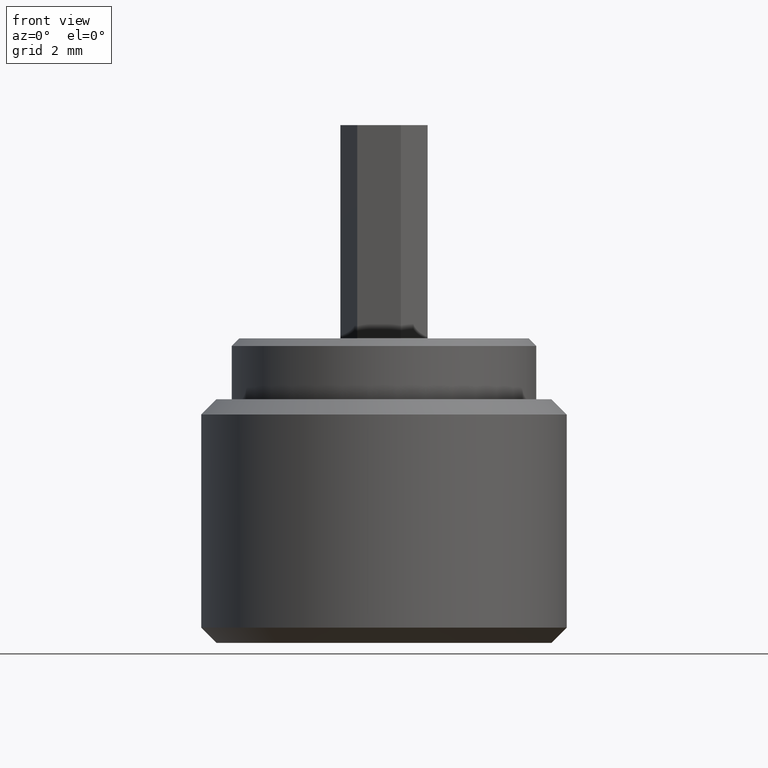
[diagram: clean part render]
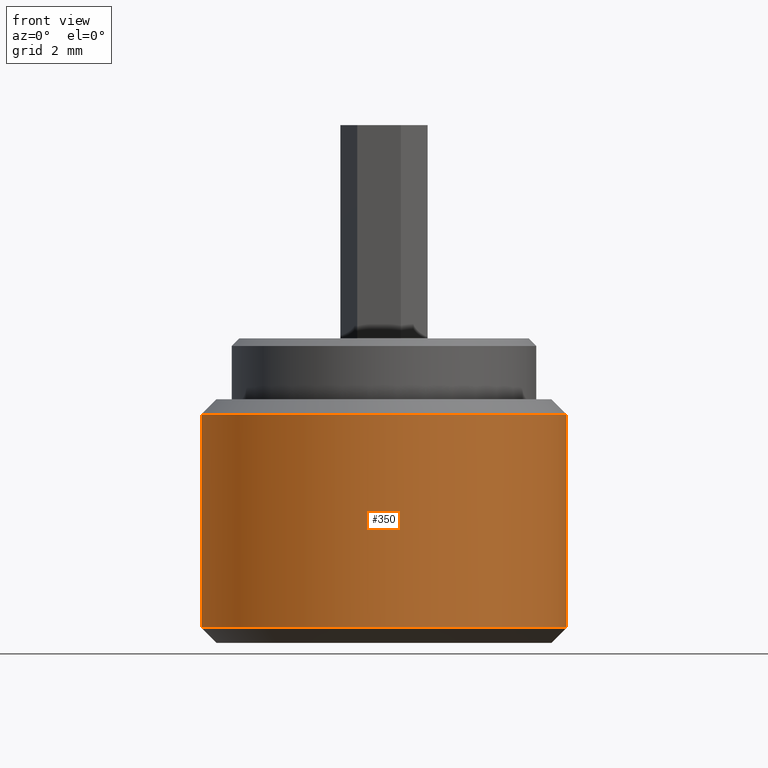
[diagram: same view with one face highlighted and labeled with its STEP entity id]
A machine part, front view. The second image highlights one B-rep face of the part: STEP entity #350.
In plain terms, the highlighted cylindrical surface (partial cylindrical patch) has radius 6 mm, axis along (-0, -0, -1).
Its self-contained STEP definition (entity closure, byte-faithful):
#8 = VERTEX_POINT ( 'NONE', #840 ) ;
#35 = DIRECTION ( 'NONE',  ( 1.000000000000000000, 0.000000000000000000, 0.000000000000000000 ) ) ;
#39 = DIRECTION ( 'NONE',  ( -1.000000000000000000, 0.000000000000000000, 0.000000000000000000 ) ) ;
#43 = VECTOR ( 'NONE', #779, 1000.000000000000000 ) ;
#103 = DIRECTION ( 'NONE',  ( 1.000000000000000000, 0.000000000000000000, 0.000000000000000000 ) ) ;
#114 = CARTESIAN_POINT ( 'NONE',  ( 6.000000000000000888, 7.347880794884120722E-16, 10.00000000000000000 ) ) ;
#213 = EDGE_CURVE ( 'NONE', #8, #946, #341, .T. ) ;
#248 = CARTESIAN_POINT ( 'NONE',  ( 6.000000000000000888, 7.347880794884120722E-16, 0.4999999999999987232 ) ) ;
#255 = LINE ( 'NONE', #114, #43 ) ;
#278 = CARTESIAN_POINT ( 'NONE',  ( -6.000000000000000888, 0.000000000000000000, 0.4999999999999987232 ) ) ;
#316 = EDGE_CURVE ( 'NONE', #8, #797, #255, .T. ) ;
#328 = LINE ( 'NONE', #773, #610 ) ;
#329 = EDGE_CURVE ( 'NONE', #842, #797, #940, .T. ) ;
#341 = CIRCLE ( 'NONE', #755, 6.000000000000000888 ) ;
#350 = ADVANCED_FACE ( 'NONE', ( #493 ), #796, .T. ) ;
#390 = AXIS2_PLACEMENT_3D ( 'NONE', #420, #718, #39 ) ;
#420 = CARTESIAN_POINT ( 'NONE',  ( 0.000000000000000000, 0.000000000000000000, 10.00000000000000000 ) ) ;
#488 = ORIENTED_EDGE ( 'NONE', *, *, #316, .F. ) ;
#493 = FACE_OUTER_BOUND ( 'NONE', #570, .T. ) ;
#530 = ORIENTED_EDGE ( 'NONE', *, *, #566, .T. ) ;
#553 = DIRECTION ( 'NONE',  ( -0.000000000000000000, -0.000000000000000000, -1.000000000000000000 ) ) ;
#558 = CARTESIAN_POINT ( 'NONE',  ( 0.000000000000000000, 0.000000000000000000, 0.4999999999999987232 ) ) ;
#566 = EDGE_CURVE ( 'NONE', #946, #842, #328, .T. ) ;
#570 = EDGE_LOOP ( 'NONE', ( #488, #786, #530, #639 ) ) ;
#607 = CARTESIAN_POINT ( 'NONE',  ( -6.000000000000000888, 0.000000000000000000, 7.500000000000000000 ) ) ;
#610 = VECTOR ( 'NONE', #703, 1000.000000000000000 ) ;
#639 = ORIENTED_EDGE ( 'NONE', *, *, #329, .T. ) ;
#703 = DIRECTION ( 'NONE',  ( -0.000000000000000000, -0.000000000000000000, -1.000000000000000000 ) ) ;
#718 = DIRECTION ( 'NONE',  ( -0.000000000000000000, -0.000000000000000000, -1.000000000000000000 ) ) ;
#755 = AXIS2_PLACEMENT_3D ( 'NONE', #790, #553, #103 ) ;
#773 = CARTESIAN_POINT ( 'NONE',  ( -6.000000000000000888, 0.000000000000000000, 10.00000000000000000 ) ) ;
#779 = DIRECTION ( 'NONE',  ( -0.000000000000000000, -0.000000000000000000, -1.000000000000000000 ) ) ;
#786 = ORIENTED_EDGE ( 'NONE', *, *, #213, .T. ) ;
#790 = CARTESIAN_POINT ( 'NONE',  ( 0.000000000000000000, 0.000000000000000000, 7.500000000000000000 ) ) ;
#796 = CYLINDRICAL_SURFACE ( 'NONE', #390, 6.000000000000000888 ) ;
#797 = VERTEX_POINT ( 'NONE', #248 ) ;
#840 = CARTESIAN_POINT ( 'NONE',  ( 6.000000000000000888, 7.347880794884120722E-16, 7.500000000000000000 ) ) ;
#842 = VERTEX_POINT ( 'NONE', #278 ) ;
#888 = AXIS2_PLACEMENT_3D ( 'NONE', #558, #955, #35 ) ;
#940 = CIRCLE ( 'NONE', #888, 6.000000000000000888 ) ;
#946 = VERTEX_POINT ( 'NONE', #607 ) ;
#955 = DIRECTION ( 'NONE',  ( -0.000000000000000000, -0.000000000000000000, 1.000000000000000000 ) ) ;